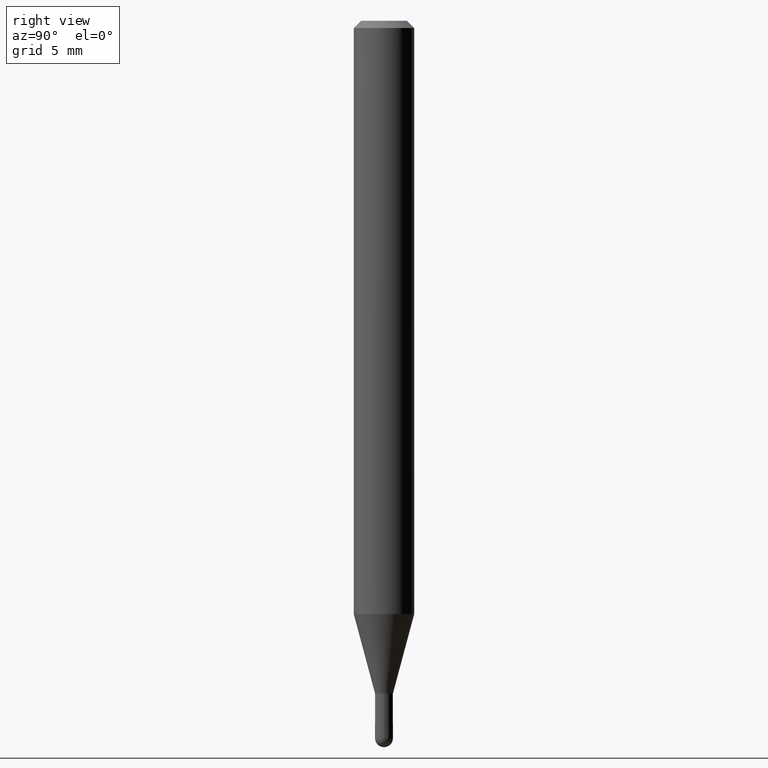
[diagram: clean part render]
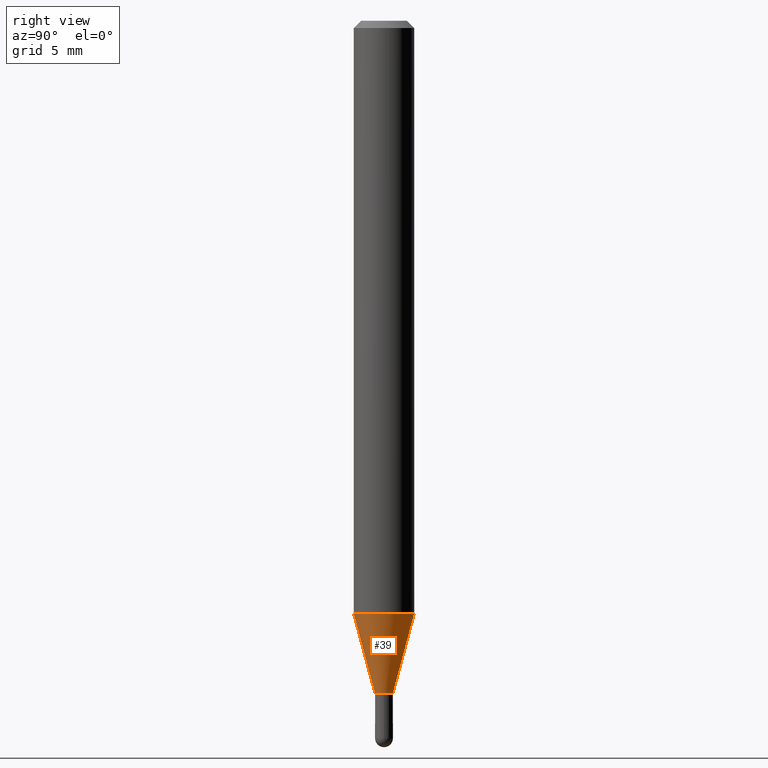
[diagram: same view with one face highlighted and labeled with its STEP entity id]
A machine part, right view. The second image highlights one B-rep face of the part: STEP entity #39.
In plain terms, the highlighted conical surface has half-angle 15 deg.
Its self-contained STEP definition (entity closure, byte-faithful):
#6 = DIRECTION ( 'NONE',  ( -6.982962677686265133E-15, -1.000000000000000000, 0.000000000000000000 ) ) ;
#22 = EDGE_CURVE ( 'NONE', #299, #479, #287, .T. ) ;
#27 = VERTEX_POINT ( 'NONE', #228 ) ;
#32 = CARTESIAN_POINT ( 'NONE',  ( 3.396733885575678864E-29, -4.849699494782143429E-15, -1.389000000000000234 ) ) ;
#39 = ADVANCED_FACE ( 'NONE', ( #462 ), #219, .T. ) ;
#44 = AXIS2_PLACEMENT_3D ( 'NONE', #32, #507, #6 ) ;
#49 = CARTESIAN_POINT ( 'NONE',  ( 1.314504061156500084E-16, 0.01849999999999480185, -1.389000000000000234 ) ) ;
#54 = EDGE_CURVE ( 'NONE', #27, #299, #338, .T. ) ;
#69 = DIRECTION ( 'NONE',  ( 1.839019923739654352E-15, 0.2588190451025325634, 0.9659258262890650926 ) ) ;
#78 = LINE ( 'NONE', #327, #88 ) ;
#88 = VECTOR ( 'NONE', #510, 39.37007874015748143 ) ;
#89 = CARTESIAN_POINT ( 'NONE',  ( -4.364351673553617913E-16, -0.06250000000000428824, -1.224789764466973629 ) ) ;
#123 = DIRECTION ( 'NONE',  ( -2.445452761393577128E-29, 3.491504315897871274E-15, 1.000000000000000000 ) ) ;
#192 = CIRCLE ( 'NONE', #288, 0.06250000000000000000 ) ;
#219 = CONICAL_SURFACE ( 'NONE', #363, 0.01849999999999965214, 0.2617993877991581231 ) ;
#228 = CARTESIAN_POINT ( 'NONE',  ( -1.291848095371595124E-16, -0.01850000000000450243, -1.389000000000000234 ) ) ;
#269 = CARTESIAN_POINT ( 'NONE',  ( 3.396733885575678864E-29, -4.849699494782143429E-15, -1.389000000000000234 ) ) ;
#279 = EDGE_CURVE ( 'NONE', #476, #479, #192, .T. ) ;
#281 = DIRECTION ( 'NONE',  ( -6.982962677686265133E-15, -1.000000000000000000, 0.000000000000000000 ) ) ;
#287 = LINE ( 'NONE', #49, #326 ) ;
#288 = AXIS2_PLACEMENT_3D ( 'NONE', #369, #291, #463 ) ;
#290 = ORIENTED_EDGE ( 'NONE', *, *, #22, .T. ) ;
#291 = DIRECTION ( 'NONE',  ( -2.445452761393577128E-29, 3.491504315897871274E-15, 1.000000000000000000 ) ) ;
#292 = CARTESIAN_POINT ( 'NONE',  ( 4.440892098500923957E-16, 0.06249999999999571176, -1.224789764466974074 ) ) ;
#299 = VERTEX_POINT ( 'NONE', #321 ) ;
#303 = EDGE_CURVE ( 'NONE', #27, #476, #78, .T. ) ;
#306 = ORIENTED_EDGE ( 'NONE', *, *, #54, .T. ) ;
#321 = CARTESIAN_POINT ( 'NONE',  ( 2.877698079828713992E-16, 0.01849999999999480185, -1.389000000000000234 ) ) ;
#326 = VECTOR ( 'NONE', #69, 39.37007874015748143 ) ;
#327 = CARTESIAN_POINT ( 'NONE',  ( -1.291848095371595124E-16, -0.01850000000000450243, -1.389000000000000234 ) ) ;
#338 = CIRCLE ( 'NONE', #44, 0.01849999999999965214 ) ;
#342 = ORIENTED_EDGE ( 'NONE', *, *, #303, .F. ) ;
#363 = AXIS2_PLACEMENT_3D ( 'NONE', #269, #123, #281 ) ;
#369 = CARTESIAN_POINT ( 'NONE',  ( 2.995165511642350382E-29, -4.276358748703976634E-15, -1.224789764466973851 ) ) ;
#453 = ORIENTED_EDGE ( 'NONE', *, *, #279, .F. ) ;
#460 = EDGE_LOOP ( 'NONE', ( #306, #290, #453, #342 ) ) ;
#462 = FACE_OUTER_BOUND ( 'NONE', #460, .T. ) ;
#463 = DIRECTION ( 'NONE',  ( -6.982962677686265922E-15, -1.000000000000000000, 4.370956789862821150E-15 ) ) ;
#476 = VERTEX_POINT ( 'NONE', #89 ) ;
#479 = VERTEX_POINT ( 'NONE', #292 ) ;
#507 = DIRECTION ( 'NONE',  ( -2.445452761393577128E-29, 3.491504315897871274E-15, 1.000000000000000000 ) ) ;
#510 = DIRECTION ( 'NONE',  ( -1.807323732225383387E-15, -0.2588190451025257910, 0.9659258262890669799 ) ) ;